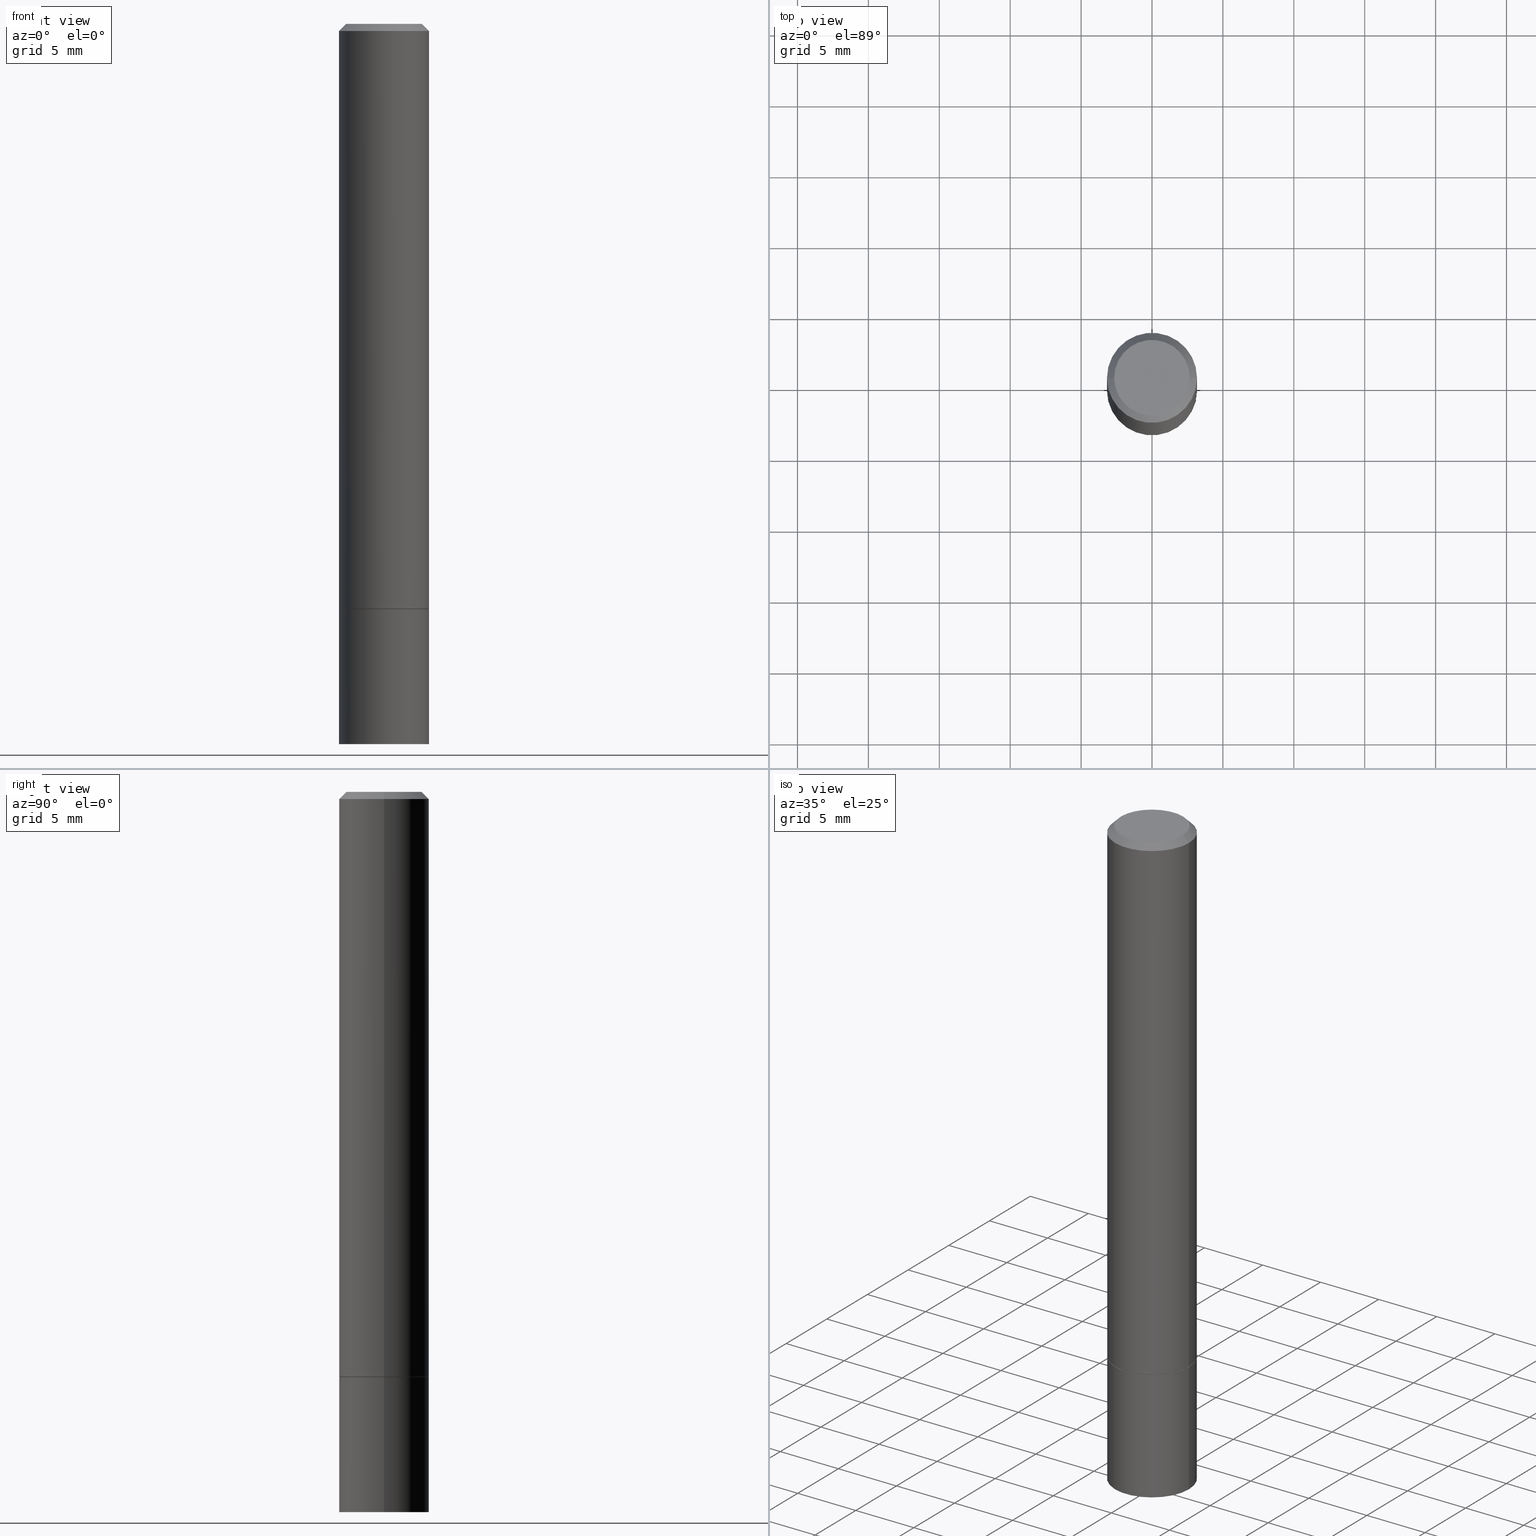
[diagram: canonical four-view strip — front | top / right | iso, engineering-drawing reading convention]
A machine part, canonical four-view strip (front | top / right | iso — engineering-drawing reading convention). The complete STEP part file that produces these views, byte-faithful:
ISO-10303-21;
HEADER;
FILE_DESCRIPTION (( 'STEP AP203' ),
    '1' );
FILE_NAME ('34730.STEP',
    '2024-02-27T17:13:03',
    ( '' ),
    ( '' ),
    'SwSTEP 2.0',
    'SolidWorks 2023',
    '' );
FILE_SCHEMA (( 'CONFIG_CONTROL_DESIGN' ));
ENDSEC;

DATA;
#1 = CARTESIAN_POINT ( 'NONE',  ( 4.890937612370273194E-29, -6.982962677686291165E-15, -2.000000000000000000 ) ) ;
#2 = CIRCLE ( 'NONE', #200, 0.1250000000000000000 ) ;
#3 = FACE_OUTER_BOUND ( 'NONE', #270, .T. ) ;
#4 = CARTESIAN_POINT ( 'NONE',  ( 0.1250000000000000000, -6.543036028992051756E-15, -1.623999999999999888 ) ) ;
#5 = CARTESIAN_POINT ( 'NONE',  ( 3.973886810050846970E-29, -5.673657175620112213E-15, -1.625000000000000000 ) ) ;
#6 = AXIS2_PLACEMENT_3D ( 'NONE', #175, #287, #265 ) ;
#7 = APPROVAL_DATE_TIME ( #176, #235 ) ;
#8 = CARTESIAN_POINT ( 'NONE',  ( 0.1249999999999997780, -9.273918764983027713E-16, -0.02000000000000003511 ) ) ;
#9 = EDGE_LOOP ( 'NONE', ( #263, #293, #357, #204 ) ) ;
#10 = EDGE_CURVE ( 'NONE', #138, #364, #342, .T. ) ;
#11 = APPROVAL_STATUS ( 'not_yet_approved' ) ;
#12 = VECTOR ( 'NONE', #256, 39.37007874015748854 ) ;
#13 = CIRCLE ( 'NONE', #165, 0.1250000000000000000 ) ;
#14 = COORDINATED_UNIVERSAL_TIME_OFFSET ( 5, 0, .BEHIND. ) ;
#15 = PLANE ( 'NONE',  #301 ) ;
#16 = APPROVAL_DATE_TIME ( #168, #56 ) ;
#17 = CONICAL_SURFACE ( 'NONE', #335, 0.1249999999999997780, 0.7853981633974477239 ) ;
#18 = SECURITY_CLASSIFICATION ( '', '', #97 ) ;
#19 = ORIENTED_EDGE ( 'NONE', *, *, #218, .T. ) ;
#20 = DIRECTION ( 'NONE',  ( 2.438088387897960049E-29, -3.491481338843145188E-15, -1.000000000000000000 ) ) ;
#21 = DIRECTION ( 'NONE',  ( -2.445468806185136597E-29, 3.491481338843145583E-15, 1.000000000000000000 ) ) ;
#22 = EDGE_CURVE ( 'NONE', #213, #143, #203, .T. ) ;
#23 = CARTESIAN_POINT ( 'NONE',  ( 8.728703347108229791E-16, 0.1249999999999943240, -1.625000000000000666 ) ) ;
#24 = CARTESIAN_POINT ( 'NONE',  ( 0.000000000000000000, 0.000000000000000000, 0.000000000000000000 ) ) ;
#25 = EDGE_LOOP ( 'NONE', ( #152, #233, #244, #239 ) ) ;
#26 = DIRECTION ( 'NONE',  ( 1.000000000000000000, -6.982962677686266711E-15, 4.876176775795935793E-29 ) ) ;
#27 = AXIS2_PLACEMENT_3D ( 'NONE', #24, #74, #26 ) ;
#28 = DIRECTION ( 'NONE',  ( 1.000000000000000000, -6.982962677686270655E-15, 0.000000000000000000 ) ) ;
#29 = DIRECTION ( 'NONE',  ( 1.000000000000000000, -6.982962677686262766E-15, 0.000000000000000000 ) ) ;
#30 = CIRCLE ( 'NONE', #354, 0.1049999999999997741 ) ;
#31 = VECTOR ( 'NONE', #144, 39.37007874015748143 ) ;
#32 = CC_DESIGN_PERSON_AND_ORGANIZATION_ASSIGNMENT ( #240, #40, ( #170 ) ) ;
#33 = DIRECTION ( 'NONE',  ( -2.438088387897960049E-29, 3.491481338843145188E-15, 1.000000000000000000 ) ) ;
#34 = APPROVAL_STATUS ( 'not_yet_approved' ) ;
#35 = FACE_OUTER_BOUND ( 'NONE', #321, .T. ) ;
#36 = LINE ( 'NONE', #268, #227 ) ;
#37 = PERSON_AND_ORGANIZATION_ROLE ( 'design_owner' ) ;
#38 = AXIS2_PLACEMENT_3D ( 'NONE', #155, #278, #133 ) ;
#39 = DIRECTION ( 'NONE',  ( 1.000000000000000000, -6.982962677686262766E-15, 0.000000000000000000 ) ) ;
#40 = PERSON_AND_ORGANIZATION_ROLE ( 'creator' ) ;
#41 = CC_DESIGN_DATE_AND_TIME_ASSIGNMENT ( #341, #288, ( #226 ) ) ;
#42 = DIRECTION ( 'NONE',  ( -2.445468806185136597E-29, 3.491481338843145583E-15, 1.000000000000000000 ) ) ;
#43 = CYLINDRICAL_SURFACE ( 'NONE', #73, 0.1249999999999999029 ) ;
#44 = CARTESIAN_POINT ( 'NONE',  ( 4.890937612370281041E-31, -6.982962677686302702E-17, -0.02000000000000003511 ) ) ;
#45 = EDGE_CURVE ( 'NONE', #138, #65, #36, .T. ) ;
#46 = DIRECTION ( 'NONE',  ( -2.445468806185136597E-29, 3.491481338843145583E-15, 1.000000000000000000 ) ) ;
#47 = CARTESIAN_POINT ( 'NONE',  ( -0.1249999999999997780, 8.030407079339188573E-16, -0.02000000000000003511 ) ) ;
#48 = ORIENTED_EDGE ( 'NONE', *, *, #245, .F. ) ;
#49 = DIRECTION ( 'NONE',  ( -2.445468806185136597E-29, 3.491481338843145583E-15, 1.000000000000000000 ) ) ;
#50 = FACE_OUTER_BOUND ( 'NONE', #72, .T. ) ;
#51 = CARTESIAN_POINT ( 'NONE',  ( -0.1239999999999999991, -4.792584183277587989E-15, -1.625000000000000000 ) ) ;
#52 = CARTESIAN_POINT ( 'NONE',  ( 3.973886810050846970E-29, -5.673657175620112213E-15, -1.625000000000000000 ) ) ;
#53 = APPROVAL_PERSON_ORGANIZATION ( #178, #235, #314 ) ;
#54 = ADVANCED_FACE ( 'NONE', ( #35 ), #261, .F. ) ;
#55 = CARTESIAN_POINT ( 'NONE',  ( 0.1049999999999997741, -8.238720831321559881E-16, 5.444276250344138855E-30 ) ) ;
#56 = APPROVAL ( #11, 'UNSPECIFIED' ) ;
#57 = DIRECTION ( 'NONE',  ( -2.445468806185136597E-29, 3.491481338843145583E-15, 1.000000000000000000 ) ) ;
#58 = ORIENTED_EDGE ( 'NONE', *, *, #260, .F. ) ;
#59 = PERSON_AND_ORGANIZATION ( #359, #193 ) ;
#60 = VERTEX_POINT ( 'NONE', #76 ) ;
#61 = VECTOR ( 'NONE', #89, 39.37007874015748854 ) ;
#62 = FACE_OUTER_BOUND ( 'NONE', #25, .T. ) ;
#63 = PERSON_AND_ORGANIZATION ( #359, #193 ) ;
#64 = LOCAL_TIME ( 12, 13, 3.000000000000000000, #238 ) ;
#65 = VERTEX_POINT ( 'NONE', #47 ) ;
#66 = EDGE_LOOP ( 'NONE', ( #322, #266, #177, #338 ) ) ;
#67 = CC_DESIGN_PERSON_AND_ORGANIZATION_ASSIGNMENT ( #229, #149, ( #170 ) ) ;
#68 = DIRECTION ( 'NONE',  ( 1.000000000000000000, -6.982962677686270655E-15, 0.000000000000000000 ) ) ;
#69 = APPROVAL_DATE_TIME ( #123, #157 ) ;
#70 = DIRECTION ( 'NONE',  ( -2.445468806185136597E-29, 3.491481338843145583E-15, 1.000000000000000000 ) ) ;
#71 = ORIENTED_EDGE ( 'NONE', *, *, #332, .T. ) ;
#72 = EDGE_LOOP ( 'NONE', ( #167, #276 ) ) ;
#73 = AXIS2_PLACEMENT_3D ( 'NONE', #151, #42, #275 ) ;
#74 = DIRECTION ( 'NONE',  ( -2.445468806185136597E-29, 3.491481338843145583E-15, 1.000000000000000000 ) ) ;
#75 = ORIENTED_EDGE ( 'NONE', *, *, #303, .F. ) ;
#76 = CARTESIAN_POINT ( 'NONE',  ( -0.1239999999999999991, -4.787285728929364798E-15, -1.625000000000000000 ) ) ;
#77 = ADVANCED_FACE ( 'NONE', ( #50 ), #106, .T. ) ;
#78 = EDGE_CURVE ( 'NONE', #195, #230, #236, .T. ) ;
#79 = DIRECTION ( 'NONE',  ( -2.445468806185136597E-29, 3.491481338843145583E-15, 1.000000000000000000 ) ) ;
#80 = CIRCLE ( 'NONE', #113, 0.1249999999999997780 ) ;
#81 = DIRECTION ( 'NONE',  ( 1.000000000000000000, -6.982962677686270655E-15, 0.000000000000000000 ) ) ;
#82 = LINE ( 'NONE', #356, #297 ) ;
#83 = DIRECTION ( 'NONE',  ( -1.000000000000000000, 6.982962677686265922E-15, -4.876176775795935793E-29 ) ) ;
#84 = LENGTH_MEASURE_WITH_UNIT ( LENGTH_MEASURE( 0.02539999999999999897 ), #87 );
#85 = AXIS2_PLACEMENT_3D ( 'NONE', #300, #188, #104 ) ;
#86 = CARTESIAN_POINT ( 'NONE',  ( 0.1239999999999999991, -6.539544547653209537E-15, -1.625000000000000000 ) ) ;
#87 =( LENGTH_UNIT ( ) NAMED_UNIT ( * ) SI_UNIT ( $, .METRE. ) );
#88 = LOCAL_TIME ( 12, 13, 3.000000000000000000, #295 ) ;
#89 = DIRECTION ( 'NONE',  ( -0.7071067811865232589, 7.493145998870265808E-15, 0.7071067811865715536 ) ) ;
#90 = COORDINATED_UNIVERSAL_TIME_OFFSET ( 5, 0, .BEHIND. ) ;
#91 = VERTEX_POINT ( 'NONE', #160 ) ;
#92 = ORIENTED_EDGE ( 'NONE', *, *, #332, .F. ) ;
#93 = APPROVAL_PERSON_ORGANIZATION ( #115, #157, #339 ) ;
#94 = DIRECTION ( 'NONE',  ( -2.445468806185136877E-29, 3.491481338843145188E-15, 1.000000000000000000 ) ) ;
#95 = DIRECTION ( 'NONE',  ( 1.000000000000000000, -6.982962677686270655E-15, 0.000000000000000000 ) ) ;
#96 = DIRECTION ( 'NONE',  ( 1.000000000000000000, -6.982962677686265922E-15, 4.876176775795935232E-29 ) ) ;
#97 = SECURITY_CLASSIFICATION_LEVEL ( 'unclassified' ) ;
#98 = PRODUCT_DEFINITION_SHAPE ( 'NONE', 'NONE',  #226 ) ;
#99 = EDGE_LOOP ( 'NONE', ( #289, #127, #92, #284 ) ) ;
#100 = CARTESIAN_POINT ( 'NONE',  ( 4.890937612370281041E-31, -6.982962677686302702E-17, -0.02000000000000003511 ) ) ;
#101 = DIRECTION ( 'NONE',  ( 1.000000000000000000, -6.982962677686265922E-15, 4.876176775795935793E-29 ) ) ;
#102 = EDGE_CURVE ( 'NONE', #343, #213, #2, .T. ) ;
#103 = DIRECTION ( 'NONE',  ( -2.445468806185136597E-29, 3.491481338843145583E-15, 1.000000000000000000 ) ) ;
#104 = DIRECTION ( 'NONE',  ( 1.000000000000000000, -6.982962677686270655E-15, 0.000000000000000000 ) ) ;
#105 = ORIENTED_EDGE ( 'NONE', *, *, #173, .F. ) ;
#106 = PLANE ( 'NONE',  #184 ) ;
#107 = ORIENTED_EDGE ( 'NONE', *, *, #186, .F. ) ;
#108 = DIRECTION ( 'NONE',  ( -1.000000000000000000, 6.982962677686267499E-15, 0.000000000000000000 ) ) ;
#109 = DIRECTION ( 'NONE',  ( -2.445468806185136597E-29, 3.491481338843145583E-15, 1.000000000000000000 ) ) ;
#110 = PLANE ( 'NONE',  #305 ) ;
#111 = DIMENSIONAL_EXPONENTS ( 1.000000000000000000, 0.000000000000000000, 0.000000000000000000, 0.000000000000000000, 0.000000000000000000, 0.000000000000000000, 0.000000000000000000 ) ;
#112 = ADVANCED_FACE ( 'NONE', ( #326 ), #158, .T. ) ;
#113 = AXIS2_PLACEMENT_3D ( 'NONE', #100, #103, #209 ) ;
#114 = CC_DESIGN_PERSON_AND_ORGANIZATION_ASSIGNMENT ( #59, #37, ( #296 ) ) ;
#115 = PERSON_AND_ORGANIZATION ( #359, #193 ) ;
#116 = EDGE_LOOP ( 'NONE', ( #117, #250, #316, #312 ) ) ;
#117 = ORIENTED_EDGE ( 'NONE', *, *, #308, .F. ) ;
#118 = AXIS2_PLACEMENT_3D ( 'NONE', #154, #46, #249 ) ;
#119 =( GEOMETRIC_REPRESENTATION_CONTEXT ( 3 ) GLOBAL_UNCERTAINTY_ASSIGNED_CONTEXT ( ( #222 ) ) GLOBAL_UNIT_ASSIGNED_CONTEXT ( ( #307, #306, #162 ) ) REPRESENTATION_CONTEXT ( 'NONE', 'WORKASPACE' ) );
#120 = CALENDAR_DATE ( 2024, 27, 2 ) ;
#121 = ADVANCED_FACE ( 'NONE', ( #280 ), #207, .T. ) ;
#122 = CC_DESIGN_DATE_AND_TIME_ASSIGNMENT ( #145, #231, ( #18 ) ) ;
#123 = DATE_AND_TIME ( #120, #302 ) ;
#124 = ADVANCED_FACE ( 'NONE', ( #182 ), #43, .T. ) ;
#125 = FACE_OUTER_BOUND ( 'NONE', #351, .T. ) ;
#126 = LOCAL_TIME ( 12, 13, 3.000000000000000000, #14 ) ;
#127 = ORIENTED_EDGE ( 'NONE', *, *, #303, .T. ) ;
#128 = CARTESIAN_POINT ( 'NONE',  ( -0.1249999999999999029, 8.881784197001245421E-16, -6.148668862818627323E-30 ) ) ;
#129 = DIRECTION ( 'NONE',  ( -1.000000000000000000, 6.982962677686265922E-15, -4.876176775795935793E-29 ) ) ;
#130 = CC_DESIGN_PERSON_AND_ORGANIZATION_ASSIGNMENT ( #63, #142, ( #226 ) ) ;
#131 = CARTESIAN_POINT ( 'NONE',  ( -0.1250000000000000278, -1.981819240828937864E-15, -1.623999999999999888 ) ) ;
#132 = CONICAL_SURFACE ( 'NONE', #159, 0.1239999999999999991, 0.7853981633974141952 ) ;
#133 = DIRECTION ( 'NONE',  ( 1.000000000000000000, -6.982962677686266711E-15, 4.876176775795935793E-29 ) ) ;
#134 = CARTESIAN_POINT ( 'NONE',  ( -0.1250000000000000000, -5.440131506953076851E-15, -2.000000000000000000 ) ) ;
#135 = ADVANCED_FACE ( 'NONE', ( #125 ), #15, .F. ) ;
#136 = CARTESIAN_POINT ( 'NONE',  ( 3.971441341244661927E-29, -5.670165694281268417E-15, -1.623999999999999888 ) ) ;
#137 = ADVANCED_BREP_SHAPE_REPRESENTATION ( '34730', ( #344, #228, #330 ), #119 ) ;
#138 = VERTEX_POINT ( 'NONE', #241 ) ;
#139 = CIRCLE ( 'NONE', #363, 0.1250000000000000000 ) ;
#140 = CC_DESIGN_APPROVAL ( #56, ( #18 ) ) ;
#141 = DIRECTION ( 'NONE',  ( 1.000000000000000000, 0.000000000000000000, 0.000000000000000000 ) ) ;
#142 = PERSON_AND_ORGANIZATION_ROLE ( 'creator' ) ;
#143 = VERTEX_POINT ( 'NONE', #246 ) ;
#144 = DIRECTION ( 'NONE',  ( 0.7071067811865471286, -7.319954787623254468E-15, -0.7071067811865479058 ) ) ;
#145 = DATE_AND_TIME ( #194, #205 ) ;
#146 = ORIENTED_EDGE ( 'NONE', *, *, #247, .T. ) ;
#147 = AXIS2_PLACEMENT_3D ( 'NONE', #52, #49, #28 ) ;
#148 = DIRECTION ( 'NONE',  ( 0.000000000000000000, 0.000000000000000000, 1.000000000000000000 ) ) ;
#149 = PERSON_AND_ORGANIZATION_ROLE ( 'design_supplier' ) ;
#150 = EDGE_LOOP ( 'NONE', ( #169, #208, #19, #347 ) ) ;
#151 = CARTESIAN_POINT ( 'NONE',  ( 0.000000000000000000, 0.000000000000000000, 0.000000000000000000 ) ) ;
#152 = ORIENTED_EDGE ( 'NONE', *, *, #260, .T. ) ;
#153 = ORIENTED_EDGE ( 'NONE', *, *, #22, .T. ) ;
#154 = CARTESIAN_POINT ( 'NONE',  ( 0.000000000000000000, 0.000000000000000000, 0.000000000000000000 ) ) ;
#155 = CARTESIAN_POINT ( 'NONE',  ( 0.000000000000000000, 0.000000000000000000, 0.000000000000000000 ) ) ;
#156 = ADVANCED_FACE ( 'NONE', ( #243 ), #17, .T. ) ;
#157 = APPROVAL ( #197, 'UNSPECIFIED' ) ;
#158 = CYLINDRICAL_SURFACE ( 'NONE', #38, 0.1250000000000000000 ) ;
#159 = AXIS2_PLACEMENT_3D ( 'NONE', #171, #57, #68 ) ;
#160 = CARTESIAN_POINT ( 'NONE',  ( 0.1239999999999999991, -6.539544547653209537E-15, -1.625000000000000000 ) ) ;
#161 = DIRECTION ( 'NONE',  ( 2.438088387897960049E-29, -3.491481338843145188E-15, -1.000000000000000000 ) ) ;
#162 =( NAMED_UNIT ( * ) SI_UNIT ( $, .STERADIAN. ) SOLID_ANGLE_UNIT ( ) );
#163 = DESIGN_CONTEXT ( 'detailed design', #174, 'design' ) ;
#164 = DIRECTION ( 'NONE',  ( -2.445468806185136597E-29, 3.491481338843145583E-15, 1.000000000000000000 ) ) ;
#165 = AXIS2_PLACEMENT_3D ( 'NONE', #355, #183, #39 ) ;
#166 = CARTESIAN_POINT ( 'NONE',  ( 4.890937612370281041E-31, -6.982962677686302702E-17, -0.02000000000000003511 ) ) ;
#167 = ORIENTED_EDGE ( 'NONE', *, *, #345, .F. ) ;
#168 = DATE_AND_TIME ( #346, #64 ) ;
#169 = ORIENTED_EDGE ( 'NONE', *, *, #211, .F. ) ;
#170 = PRODUCT_DEFINITION_FORMATION_WITH_SPECIFIED_SOURCE ( 'ANY', '', #296, .NOT_KNOWN. ) ;
#171 = CARTESIAN_POINT ( 'NONE',  ( 3.973886810050846970E-29, -5.673657175620112213E-15, -1.625000000000000000 ) ) ;
#172 = APPLICATION_PROTOCOL_DEFINITION ( 'international standard', 'config_control_design', 1994, #174 ) ;
#173 = EDGE_CURVE ( 'NONE', #230, #298, #82, .T. ) ;
#174 = APPLICATION_CONTEXT ( 'configuration controlled 3d designs of mechanical parts and assemblies' ) ;
#175 = CARTESIAN_POINT ( 'NONE',  ( 3.973886810050846970E-29, -5.673657175620112213E-15, -1.625000000000000000 ) ) ;
#176 = DATE_AND_TIME ( #264, #126 ) ;
#177 = ORIENTED_EDGE ( 'NONE', *, *, #186, .T. ) ;
#178 = PERSON_AND_ORGANIZATION ( #359, #193 ) ;
#179 = ORIENTED_EDGE ( 'NONE', *, *, #319, .F. ) ;
#180 = CIRCLE ( 'NONE', #237, 0.1249999999999997780 ) ;
#181 = EDGE_CURVE ( 'NONE', #364, #138, #30, .T. ) ;
#182 = FACE_OUTER_BOUND ( 'NONE', #116, .T. ) ;
#183 = DIRECTION ( 'NONE',  ( -2.445468806185136597E-29, 3.491481338843145583E-15, 1.000000000000000000 ) ) ;
#184 = AXIS2_PLACEMENT_3D ( 'NONE', #217, #323, #83 ) ;
#185 = VECTOR ( 'NONE', #94, 39.37007874015748143 ) ;
#186 = EDGE_CURVE ( 'NONE', #298, #65, #80, .T. ) ;
#187 = FACE_OUTER_BOUND ( 'NONE', #150, .T. ) ;
#188 = DIRECTION ( 'NONE',  ( -2.445468806185136597E-29, 3.491481338843145583E-15, 1.000000000000000000 ) ) ;
#189 = CONICAL_SURFACE ( 'NONE', #318, 0.1239999999999999991, 0.7853981633974141952 ) ;
#190 = FACE_OUTER_BOUND ( 'NONE', #66, .T. ) ;
#191 = CARTESIAN_POINT ( 'NONE',  ( 7.332110811570563480E-16, 0.1049999999999997741, -3.666055405785295052E-16 ) ) ;
#192 = AXIS2_PLACEMENT_3D ( 'NONE', #5, #33, #101 ) ;
#193 = ORGANIZATION ( 'UNSPECIFIED', 'UNSPECIFIED', '' ) ;
#194 = CALENDAR_DATE ( 2024, 27, 2 ) ;
#195 = VERTEX_POINT ( 'NONE', #131 ) ;
#196 = ORIENTED_EDGE ( 'NONE', *, *, #102, .T. ) ;
#197 = APPROVAL_STATUS ( 'not_yet_approved' ) ;
#198 = ADVANCED_FACE ( 'NONE', ( #206 ), #320, .T. ) ;
#199 = ADVANCED_FACE ( 'NONE', ( #187 ), #189, .T. ) ;
#200 = AXIS2_PLACEMENT_3D ( 'NONE', #210, #328, #81 ) ;
#201 = LINE ( 'NONE', #291, #31 ) ;
#202 = CARTESIAN_POINT ( 'NONE',  ( 0.000000000000000000, 0.000000000000000000, 0.000000000000000000 ) ) ;
#203 = LINE ( 'NONE', #331, #281 ) ;
#204 = ORIENTED_EDGE ( 'NONE', *, *, #362, .T. ) ;
#205 = LOCAL_TIME ( 12, 13, 3.000000000000000000, #90 ) ;
#206 = FACE_OUTER_BOUND ( 'NONE', #99, .T. ) ;
#207 = CYLINDRICAL_SURFACE ( 'NONE', #27, 0.1249999999999999029 ) ;
#208 = ORIENTED_EDGE ( 'NONE', *, *, #245, .T. ) ;
#209 = DIRECTION ( 'NONE',  ( 1.000000000000000000, -6.982962677686265922E-15, 0.000000000000000000 ) ) ;
#210 = CARTESIAN_POINT ( 'NONE',  ( 4.890937612370273194E-29, -6.982962677686291165E-15, -2.000000000000000000 ) ) ;
#211 = EDGE_CURVE ( 'NONE', #60, #195, #336, .T. ) ;
#212 = ADVANCED_FACE ( 'NONE', ( #3 ), #110, .F. ) ;
#213 = VERTEX_POINT ( 'NONE', #282 ) ;
#214 = AXIS2_PLACEMENT_3D ( 'NONE', #166, #255, #108 ) ;
#215 = VECTOR ( 'NONE', #242, 39.37007874015748143 ) ;
#216 = CARTESIAN_POINT ( 'NONE',  ( 4.890937612370281041E-31, -6.982962677686302702E-17, -0.02000000000000003511 ) ) ;
#217 = CARTESIAN_POINT ( 'NONE',  ( 8.728703347108321496E-16, 0.1249999999999930195, -2.000000000000000444 ) ) ;
#218 = EDGE_CURVE ( 'NONE', #91, #230, #333, .T. ) ;
#219 = DIRECTION ( 'NONE',  ( -2.445468806185136597E-29, 3.491481338843145583E-15, 1.000000000000000000 ) ) ;
#220 = CARTESIAN_POINT ( 'NONE',  ( 3.973886810050846970E-29, -5.673657175620112213E-15, -1.625000000000000000 ) ) ;
#221 = CIRCLE ( 'NONE', #262, 0.1250000000000000000 ) ;
#222 = UNCERTAINTY_MEASURE_WITH_UNIT (LENGTH_MEASURE( 1.000000000000000082E-05 ), #307, 'distance_accuracy_value', 'NONE');
#223 = DIRECTION ( 'NONE',  ( -1.000000000000000000, 6.982962677686265922E-15, -4.876176775795935793E-29 ) ) ;
#224 = APPLICATION_PROTOCOL_DEFINITION ( 'international standard', 'config_control_design', 1994, #252 ) ;
#225 = DIRECTION ( 'NONE',  ( 1.000000000000000000, -6.982962677686265922E-15, 0.000000000000000000 ) ) ;
#226 = PRODUCT_DEFINITION ( 'UNKNOWN', '', #170, #163 ) ;
#227 = VECTOR ( 'NONE', #292, 39.37007874015748143 ) ;
#228 = MANIFOLD_SOLID_BREP ( 'Body-Move/Copy2[2]', #324 ) ;
#229 = PERSON_AND_ORGANIZATION ( #359, #193 ) ;
#230 = VERTEX_POINT ( 'NONE', #4 ) ;
#231 = DATE_TIME_ROLE ( 'classification_date' ) ;
#232 = ADVANCED_FACE ( 'NONE', ( #190 ), #251, .T. ) ;
#233 = ORIENTED_EDGE ( 'NONE', *, *, #211, .T. ) ;
#234 = LINE ( 'NONE', #340, #185 ) ;
#235 = APPROVAL ( #34, 'UNSPECIFIED' ) ;
#236 = CIRCLE ( 'NONE', #85, 0.1250000000000000000 ) ;
#237 = AXIS2_PLACEMENT_3D ( 'NONE', #44, #21, #225 ) ;
#238 = COORDINATED_UNIVERSAL_TIME_OFFSET ( 5, 0, .BEHIND. ) ;
#239 = ORIENTED_EDGE ( 'NONE', *, *, #218, .F. ) ;
#240 = PERSON_AND_ORGANIZATION ( #359, #193 ) ;
#241 = CARTESIAN_POINT ( 'NONE',  ( -0.1049999999999997741, 7.681258945454876027E-16, -5.249639473182155366E-30 ) ) ;
#242 = DIRECTION ( 'NONE',  ( -2.445468806185136877E-29, 3.491481338843145188E-15, 1.000000000000000000 ) ) ;
#243 = FACE_OUTER_BOUND ( 'NONE', #9, .T. ) ;
#244 = ORIENTED_EDGE ( 'NONE', *, *, #247, .F. ) ;
#245 = EDGE_CURVE ( 'NONE', #60, #91, #271, .T. ) ;
#246 = CARTESIAN_POINT ( 'NONE',  ( 0.1250000000000000000, -6.546527510330894763E-15, -1.625000000000000000 ) ) ;
#247 = EDGE_CURVE ( 'NONE', #230, #195, #139, .T. ) ;
#248 = ORIENTED_EDGE ( 'NONE', *, *, #10, .T. ) ;
#249 = DIRECTION ( 'NONE',  ( 1.000000000000000000, -6.982962677686266711E-15, 4.876176775795935793E-29 ) ) ;
#250 = ORIENTED_EDGE ( 'NONE', *, *, #78, .T. ) ;
#251 = CONICAL_SURFACE ( 'NONE', #214, 0.1249999999999997780, 0.7853981633974477239 ) ;
#252 = APPLICATION_CONTEXT ( 'configuration controlled 3d designs of mechanical parts and assemblies' ) ;
#253 = CARTESIAN_POINT ( 'NONE',  ( 0.000000000000000000, 0.000000000000000000, 0.000000000000000000 ) ) ;
#254 = ADVANCED_FACE ( 'NONE', ( #62 ), #132, .T. ) ;
#255 = DIRECTION ( 'NONE',  ( 2.445468806185136597E-29, -3.491481338843145583E-15, -1.000000000000000000 ) ) ;
#256 = DIRECTION ( 'NONE',  ( 0.7071067811865232589, -2.468850131082003836E-15, 0.7071067811865715536 ) ) ;
#257 = ORIENTED_EDGE ( 'NONE', *, *, #181, .T. ) ;
#258 = DIRECTION ( 'NONE',  ( -2.445468806185136877E-29, 3.491481338843145188E-15, 1.000000000000000000 ) ) ;
#259 = AXIS2_PLACEMENT_3D ( 'NONE', #1, #109, #290 ) ;
#260 = EDGE_CURVE ( 'NONE', #91, #60, #294, .T. ) ;
#261 = PLANE ( 'NONE',  #192 ) ;
#262 = AXIS2_PLACEMENT_3D ( 'NONE', #352, #219, #29 ) ;
#263 = ORIENTED_EDGE ( 'NONE', *, *, #304, .F. ) ;
#264 = CALENDAR_DATE ( 2024, 27, 2 ) ;
#265 = DIRECTION ( 'NONE',  ( 1.000000000000000000, -6.982962677686270655E-15, 0.000000000000000000 ) ) ;
#266 = ORIENTED_EDGE ( 'NONE', *, *, #304, .T. ) ;
#267 = EDGE_LOOP ( 'NONE', ( #146, #348, #107, #105 ) ) ;
#268 = CARTESIAN_POINT ( 'NONE',  ( -0.1249999999999997780, 8.030407079339188573E-16, -0.02000000000000003511 ) ) ;
#269 = PERSON_AND_ORGANIZATION ( #359, #193 ) ;
#270 = EDGE_LOOP ( 'NONE', ( #248, #257 ) ) ;
#271 = CIRCLE ( 'NONE', #147, 0.1239999999999999991 ) ;
#272 = APPROVAL_PERSON_ORGANIZATION ( #269, #56, #309 ) ;
#273 = PERSON_AND_ORGANIZATION ( #359, #193 ) ;
#274 = EDGE_LOOP ( 'NONE', ( #75, #196, #153, #179 ) ) ;
#275 = DIRECTION ( 'NONE',  ( 1.000000000000000000, -6.982962677686266711E-15, 4.876176775795935793E-29 ) ) ;
#276 = ORIENTED_EDGE ( 'NONE', *, *, #102, .F. ) ;
#277 = CC_DESIGN_SECURITY_CLASSIFICATION ( #18, ( #170 ) ) ;
#278 = DIRECTION ( 'NONE',  ( -2.445468806185136597E-29, 3.491481338843145583E-15, 1.000000000000000000 ) ) ;
#279 = LINE ( 'NONE', #128, #215 ) ;
#280 = FACE_OUTER_BOUND ( 'NONE', #267, .T. ) ;
#281 = VECTOR ( 'NONE', #258, 39.37007874015748143 ) ;
#282 = CARTESIAN_POINT ( 'NONE',  ( 0.1250000000000000000, -7.855833012397075293E-15, -2.000000000000000000 ) ) ;
#283 = DIRECTION ( 'NONE',  ( 1.000000000000000000, -6.982962677686270655E-15, 0.000000000000000000 ) ) ;
#284 = ORIENTED_EDGE ( 'NONE', *, *, #22, .F. ) ;
#285 = CIRCLE ( 'NONE', #259, 0.1250000000000000000 ) ;
#286 = AXIS2_PLACEMENT_3D ( 'NONE', #310, #70, #96 ) ;
#287 = DIRECTION ( 'NONE',  ( -2.445468806185136597E-29, 3.491481338843145583E-15, 1.000000000000000000 ) ) ;
#288 = DATE_TIME_ROLE ( 'creation_date' ) ;
#289 = ORIENTED_EDGE ( 'NONE', *, *, #345, .T. ) ;
#290 = DIRECTION ( 'NONE',  ( 1.000000000000000000, -6.982962677686270655E-15, 0.000000000000000000 ) ) ;
#291 = CARTESIAN_POINT ( 'NONE',  ( 0.1249999999999997780, -9.273918764983027713E-16, -0.02000000000000003511 ) ) ;
#292 = DIRECTION ( 'NONE',  ( -0.7071067811865471286, 2.468850131082252722E-15, -0.7071067811865479058 ) ) ;
#293 = ORIENTED_EDGE ( 'NONE', *, *, #10, .F. ) ;
#294 = CIRCLE ( 'NONE', #6, 0.1239999999999999991 ) ;
#295 = COORDINATED_UNIVERSAL_TIME_OFFSET ( 5, 0, .BEHIND. ) ;
#296 = PRODUCT ( '34730', '34730', '', ( #349 ) ) ;
#297 = VECTOR ( 'NONE', #360, 39.37007874015748143 ) ;
#298 = VERTEX_POINT ( 'NONE', #8 ) ;
#299 = CC_DESIGN_APPROVAL ( #235, ( #170 ) ) ;
#300 = CARTESIAN_POINT ( 'NONE',  ( 3.971441341244661927E-29, -5.670165694281268417E-15, -1.623999999999999888 ) ) ;
#301 = AXIS2_PLACEMENT_3D ( 'NONE', #23, #20, #129 ) ;
#302 = LOCAL_TIME ( 12, 13, 3.000000000000000000, #317 ) ;
#303 = EDGE_CURVE ( 'NONE', #343, #361, #234, .T. ) ;
#304 = EDGE_CURVE ( 'NONE', #364, #298, #201, .T. ) ;
#305 = AXIS2_PLACEMENT_3D ( 'NONE', #191, #161, #223 ) ;
#306 =( NAMED_UNIT ( * ) PLANE_ANGLE_UNIT ( ) SI_UNIT ( $, .RADIAN. ) );
#307 =( CONVERSION_BASED_UNIT ( 'INCH', #84 ) LENGTH_UNIT ( ) NAMED_UNIT ( #111 ) );
#308 = EDGE_CURVE ( 'NONE', #195, #65, #279, .T. ) ;
#309 = APPROVAL_ROLE ( '' ) ;
#310 = CARTESIAN_POINT ( 'NONE',  ( 0.000000000000000000, 0.000000000000000000, 0.000000000000000000 ) ) ;
#311 = CALENDAR_DATE ( 2024, 27, 2 ) ;
#312 = ORIENTED_EDGE ( 'NONE', *, *, #362, .F. ) ;
#313 = CC_DESIGN_APPROVAL ( #157, ( #226 ) ) ;
#314 = APPROVAL_ROLE ( '' ) ;
#315 = ORIENTED_EDGE ( 'NONE', *, *, #319, .T. ) ;
#316 = ORIENTED_EDGE ( 'NONE', *, *, #173, .T. ) ;
#317 = COORDINATED_UNIVERSAL_TIME_OFFSET ( 5, 0, .BEHIND. ) ;
#318 = AXIS2_PLACEMENT_3D ( 'NONE', #220, #366, #283 ) ;
#319 = EDGE_CURVE ( 'NONE', #361, #143, #13, .T. ) ;
#320 = CYLINDRICAL_SURFACE ( 'NONE', #118, 0.1250000000000000000 ) ;
#321 = EDGE_LOOP ( 'NONE', ( #58, #48 ) ) ;
#322 = ORIENTED_EDGE ( 'NONE', *, *, #181, .F. ) ;
#323 = DIRECTION ( 'NONE',  ( 2.438088387897960049E-29, -3.491481338843145188E-15, -1.000000000000000000 ) ) ;
#324 = CLOSED_SHELL ( 'NONE', ( #254, #121, #232, #156, #124, #199, #54, #212 ) ) ;
#325 = DIRECTION ( 'NONE',  ( -1.000000000000000000, 6.982962677686267499E-15, 0.000000000000000000 ) ) ;
#326 = FACE_OUTER_BOUND ( 'NONE', #274, .T. ) ;
#327 = CC_DESIGN_PERSON_AND_ORGANIZATION_ASSIGNMENT ( #273, #337, ( #18 ) ) ;
#328 = DIRECTION ( 'NONE',  ( -2.445468806185136597E-29, 3.491481338843145583E-15, 1.000000000000000000 ) ) ;
#329 = CLOSED_SHELL ( 'NONE', ( #198, #77, #135, #112 ) ) ;
#330 = AXIS2_PLACEMENT_3D ( 'NONE', #202, #148, #141 ) ;
#331 = CARTESIAN_POINT ( 'NONE',  ( 0.1250000000000000000, -8.728703347107833388E-16, 6.095220969744919741E-30 ) ) ;
#332 = EDGE_CURVE ( 'NONE', #143, #361, #221, .T. ) ;
#333 = LINE ( 'NONE', #86, #12 ) ;
#334 = PRODUCT_RELATED_PRODUCT_CATEGORY ( 'detail', '', ( #296 ) ) ;
#335 = AXIS2_PLACEMENT_3D ( 'NONE', #216, #365, #325 ) ;
#336 = LINE ( 'NONE', #51, #61 ) ;
#337 = PERSON_AND_ORGANIZATION_ROLE ( 'classification_officer' ) ;
#338 = ORIENTED_EDGE ( 'NONE', *, *, #45, .F. ) ;
#339 = APPROVAL_ROLE ( '' ) ;
#340 = CARTESIAN_POINT ( 'NONE',  ( -0.1250000000000000000, 8.881784197001252323E-16, -6.148668862818632227E-30 ) ) ;
#341 = DATE_AND_TIME ( #311, #88 ) ;
#342 = CIRCLE ( 'NONE', #286, 0.1049999999999997741 ) ;
#343 = VERTEX_POINT ( 'NONE', #134 ) ;
#344 = MANIFOLD_SOLID_BREP ( 'Body-Move/Copy2[1]', #329 ) ;
#345 = EDGE_CURVE ( 'NONE', #213, #343, #285, .T. ) ;
#346 = CALENDAR_DATE ( 2024, 27, 2 ) ;
#347 = ORIENTED_EDGE ( 'NONE', *, *, #78, .F. ) ;
#348 = ORIENTED_EDGE ( 'NONE', *, *, #308, .T. ) ;
#349 = MECHANICAL_CONTEXT ( 'NONE', #252, 'mechanical' ) ;
#350 = CARTESIAN_POINT ( 'NONE',  ( -0.1250000000000000000, -5.440131506953076851E-15, -1.625000000000000000 ) ) ;
#351 = EDGE_LOOP ( 'NONE', ( #71, #315 ) ) ;
#352 = CARTESIAN_POINT ( 'NONE',  ( 3.973886810050846970E-29, -5.673657175620112213E-15, -1.625000000000000000 ) ) ;
#353 = DIRECTION ( 'NONE',  ( 1.000000000000000000, -6.982962677686265922E-15, 4.876176775795935232E-29 ) ) ;
#354 = AXIS2_PLACEMENT_3D ( 'NONE', #253, #79, #353 ) ;
#355 = CARTESIAN_POINT ( 'NONE',  ( 3.973886810050846970E-29, -5.673657175620112213E-15, -1.625000000000000000 ) ) ;
#356 = CARTESIAN_POINT ( 'NONE',  ( 0.1249999999999999029, -8.728703347107826486E-16, 6.095220969744914837E-30 ) ) ;
#357 = ORIENTED_EDGE ( 'NONE', *, *, #45, .T. ) ;
#358 = SHAPE_DEFINITION_REPRESENTATION ( #98, #137 ) ;
#359 = PERSON ( 'UNSPECIFIED', 'UNSPECIFIED', 'UNSPECIFIED', ('UNSPECIFIED'), ('UNSPECIFIED'), ('UNSPECIFIED') ) ;
#360 = DIRECTION ( 'NONE',  ( -2.445468806185136877E-29, 3.491481338843145188E-15, 1.000000000000000000 ) ) ;
#361 = VERTEX_POINT ( 'NONE', #350 ) ;
#362 = EDGE_CURVE ( 'NONE', #65, #298, #180, .T. ) ;
#363 = AXIS2_PLACEMENT_3D ( 'NONE', #136, #164, #95 ) ;
#364 = VERTEX_POINT ( 'NONE', #55 ) ;
#365 = DIRECTION ( 'NONE',  ( 2.445468806185136597E-29, -3.491481338843145583E-15, -1.000000000000000000 ) ) ;
#366 = DIRECTION ( 'NONE',  ( -2.445468806185136597E-29, 3.491481338843145583E-15, 1.000000000000000000 ) ) ;
ENDSEC;
END-ISO-10303-21;
